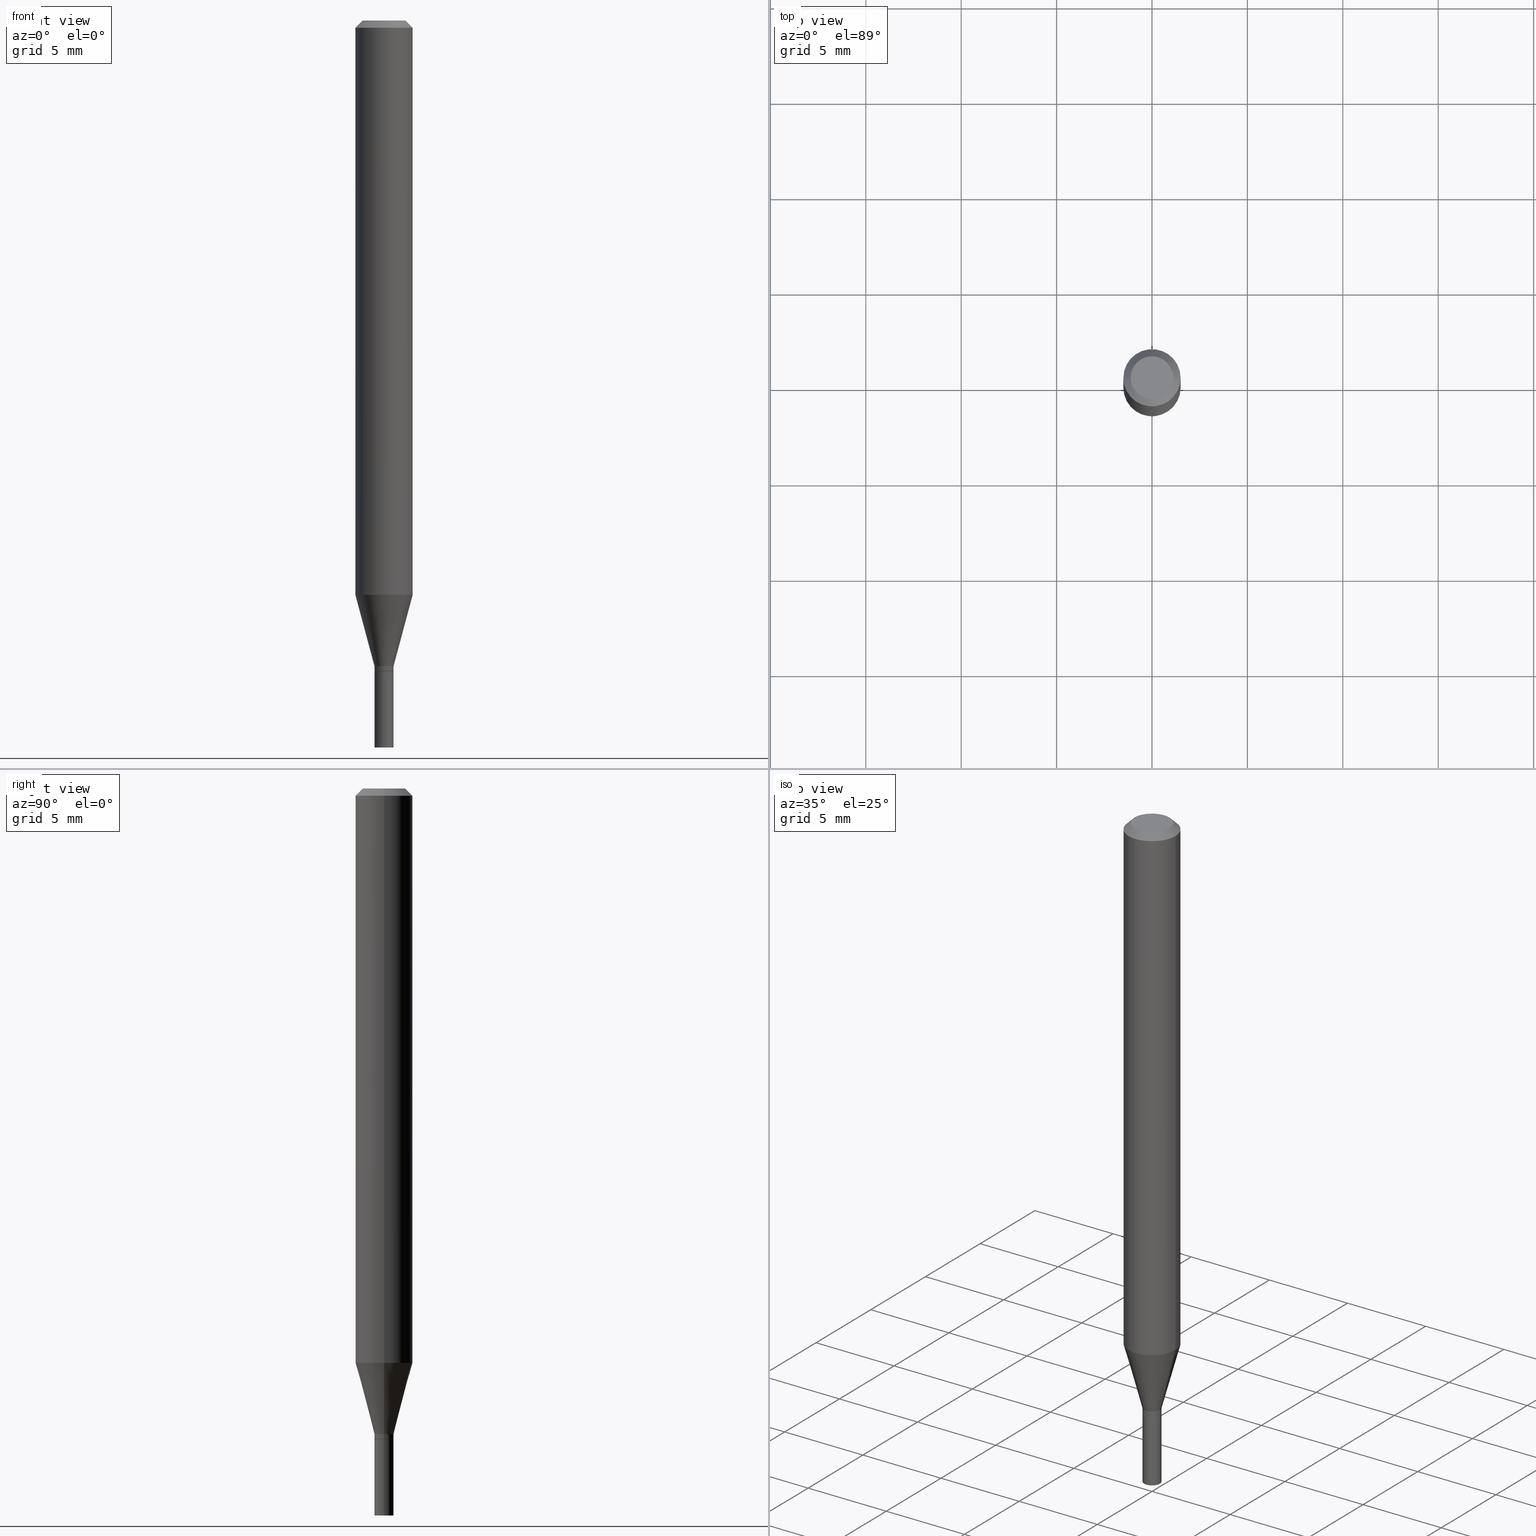
[diagram: canonical four-view strip — front | top / right | iso, engineering-drawing reading convention]
A machine part, canonical four-view strip (front | top / right | iso — engineering-drawing reading convention). The complete STEP part file that produces these views, byte-faithful:
ISO-10303-21;
HEADER;
FILE_DESCRIPTION (( 'STEP AP203' ),
    '1' );
FILE_NAME ('40305.STEP',
    '2024-03-12T19:10:31',
    ( '' ),
    ( '' ),
    'SwSTEP 2.0',
    'SolidWorks 2023',
    '' );
FILE_SCHEMA (( 'CONFIG_CONTROL_DESIGN' ));
ENDSEC;

DATA;
#1 = DIRECTION ( 'NONE',  ( -2.445468806185136597E-29, 3.491481338843145583E-15, 1.000000000000000000 ) ) ;
#2 = EDGE_CURVE ( 'NONE', #242, #251, #90, .T. ) ;
#3 = CARTESIAN_POINT ( 'NONE',  ( 3.257364449838602072E-29, -4.650653143339069312E-15, -1.331999999999999851 ) ) ;
#4 = CYLINDRICAL_SURFACE ( 'NONE', #217, 0.01969999999999990856 ) ;
#5 = LINE ( 'NONE', #264, #392 ) ;
#6 = CARTESIAN_POINT ( 'NONE',  ( 1.375643647504522233E-16, 0.01969999999999531154, -1.342500000000000249 ) ) ;
#7 = DIRECTION ( 'NONE',  ( 1.000000000000000000, -6.982962677686258033E-15, 0.000000000000000000 ) ) ;
#8 = CARTESIAN_POINT ( 'NONE',  ( -0.01919999999999999485, -4.548240264956872853E-15, -1.342500000000000249 ) ) ;
#9 = DIRECTION ( 'NONE',  ( 1.000000000000000000, -6.982962677686270655E-15, 0.000000000000000000 ) ) ;
#10 = CIRCLE ( 'NONE', #187, 0.01969999999999991896 ) ;
#11 = CIRCLE ( 'NONE', #79, 0.01969999999999989468 ) ;
#12 = DIRECTION ( 'NONE',  ( -2.445468806185136597E-29, 3.491481338843145583E-15, 1.000000000000000000 ) ) ;
#13 = DIRECTION ( 'NONE',  ( -1.000000000000000000, 6.982962677686266711E-15, 0.000000000000000000 ) ) ;
#14 = ORIENTED_EDGE ( 'NONE', *, *, #230, .F. ) ;
#15 = ORIENTED_EDGE ( 'NONE', *, *, #342, .F. ) ;
#16 = EDGE_CURVE ( 'NONE', #183, #369, #262, .T. ) ;
#17 = ORIENTED_EDGE ( 'NONE', *, *, #77, .F. ) ;
#18 = DIRECTION ( 'NONE',  ( 1.000000000000000000, -6.982962677686265922E-15, 4.876176775795935793E-29 ) ) ;
#19 = CIRCLE ( 'NONE', #233, 0.05905000000000001914 ) ;
#20 = ORIENTED_EDGE ( 'NONE', *, *, #45, .T. ) ;
#21 = LOCAL_TIME ( 15, 10, 31.00000000000000000, #247 ) ;
#22 = DATE_AND_TIME ( #310, #21 ) ;
#23 = APPROVAL_STATUS ( 'not_yet_approved' ) ;
#24 = DIRECTION ( 'NONE',  ( -2.445468806185136597E-29, 3.491481338843145583E-15, 1.000000000000000000 ) ) ;
#25 = ADVANCED_FACE ( 'NONE', ( #84 ), #105, .T. ) ;
#26 = CARTESIAN_POINT ( 'NONE',  ( 0.05905000000000001914, -4.550251410184451334E-15, -1.185143800722164409 ) ) ;
#27 = ADVANCED_FACE ( 'NONE', ( #236 ), #386, .F. ) ;
#28 = AXIS2_PLACEMENT_3D ( 'NONE', #156, #300, #41 ) ;
#29 = SECURITY_CLASSIFICATION_LEVEL ( 'unclassified' ) ;
#30 = EDGE_LOOP ( 'NONE', ( #413, #68 ) ) ;
#31 = EDGE_LOOP ( 'NONE', ( #176, #441, #430, #437 ) ) ;
#32 = PERSON_AND_ORGANIZATION ( #361, #163 ) ;
#33 = ADVANCED_FACE ( 'NONE', ( #177 ), #317, .T. ) ;
#34 = EDGE_CURVE ( 'NONE', #223, #366, #446, .T. ) ;
#35 = AXIS2_PLACEMENT_3D ( 'NONE', #320, #103, #368 ) ;
#36 = CC_DESIGN_PERSON_AND_ORGANIZATION_ASSIGNMENT ( #32, #237, ( #246 ) ) ;
#37 = CARTESIAN_POINT ( 'NONE',  ( 0.000000000000000000, 0.000000000000000000, 0.000000000000000000 ) ) ;
#38 = FACE_OUTER_BOUND ( 'NONE', #348, .T. ) ;
#39 = DIRECTION ( 'NONE',  ( -2.445468806185136597E-29, 3.491481338843145583E-15, 1.000000000000000000 ) ) ;
#40 = CARTESIAN_POINT ( 'NONE',  ( 3.281819137900453618E-29, -4.685567956727501750E-15, -1.342000000000000304 ) ) ;
#41 = DIRECTION ( 'NONE',  ( 1.000000000000000000, -6.982962677686253300E-15, 0.000000000000000000 ) ) ;
#42 = EDGE_CURVE ( 'NONE', #395, #195, #370, .T. ) ;
#43 = AXIS2_PLACEMENT_3D ( 'NONE', #81, #338, #331 ) ;
#44 = VERTEX_POINT ( 'NONE', #328 ) ;
#45 = EDGE_CURVE ( 'NONE', #455, #326, #5, .T. ) ;
#46 = LENGTH_MEASURE_WITH_UNIT ( LENGTH_MEASURE( 0.02539999999999999897 ), #302 );
#47 = ORIENTED_EDGE ( 'NONE', *, *, #2, .T. ) ;
#48 = PRODUCT_DEFINITION_SHAPE ( 'NONE', 'NONE',  #443 ) ;
#49 = DIRECTION ( 'NONE',  ( -2.445468806185136597E-29, 3.491481338843145583E-15, 1.000000000000000000 ) ) ;
#50 = CLOSED_SHELL ( 'NONE', ( #25, #279, #33, #254, #142, #52, #305, #167, #451, #281, #257, #464 ) ) ;
#51 = CIRCLE ( 'NONE', #115, 0.05905000000000001914 ) ;
#52 = ADVANCED_FACE ( 'NONE', ( #259 ), #445, .T. ) ;
#53 = FACE_OUTER_BOUND ( 'NONE', #54, .T. ) ;
#54 = EDGE_LOOP ( 'NONE', ( #101, #88, #466, #450 ) ) ;
#55 = DIRECTION ( 'NONE',  ( -1.000000000000000000, 6.982962677686265922E-15, -4.876176775795935793E-29 ) ) ;
#56 = CARTESIAN_POINT ( 'NONE',  ( 0.000000000000000000, 0.000000000000000000, 0.000000000000000000 ) ) ;
#57 = SHAPE_DEFINITION_REPRESENTATION ( #48, #82 ) ;
#58 = PLANE ( 'NONE',  #240 ) ;
#59 = CARTESIAN_POINT ( 'NONE',  ( 3.283041872303546419E-29, -4.687313697396923253E-15, -1.342500000000000249 ) ) ;
#60 = VECTOR ( 'NONE', #408, 39.37007874015748854 ) ;
#61 = VECTOR ( 'NONE', #435, 39.37007874015748143 ) ;
#62 = APPLICATION_PROTOCOL_DEFINITION ( 'international standard', 'config_control_design', 1994, #224 ) ;
#63 = VERTEX_POINT ( 'NONE', #8 ) ;
#64 = EDGE_CURVE ( 'NONE', #251, #183, #150, .T. ) ;
#65 = EDGE_LOOP ( 'NONE', ( #301, #298 ) ) ;
#66 = PRODUCT_RELATED_PRODUCT_CATEGORY ( 'detail', '', ( #246 ) ) ;
#67 = DIRECTION ( 'NONE',  ( -2.445468806185136597E-29, 3.491481338843145583E-15, 1.000000000000000000 ) ) ;
#68 = ORIENTED_EDGE ( 'NONE', *, *, #380, .T. ) ;
#69 =( CONVERSION_BASED_UNIT ( 'INCH', #46 ) LENGTH_UNIT ( ) NAMED_UNIT ( #365 ) );
#70 = DIRECTION ( 'NONE',  ( -2.445468806185136597E-29, 3.491481338843145583E-15, 1.000000000000000000 ) ) ;
#71 = PERSON_AND_ORGANIZATION_ROLE ( 'design_supplier' ) ;
#72 = ORIENTED_EDGE ( 'NONE', *, *, #135, .F. ) ;
#73 = AXIS2_PLACEMENT_3D ( 'NONE', #203, #431, #98 ) ;
#74 = CARTESIAN_POINT ( 'NONE',  ( 0.01969999999999999876, -1.375643647504194363E-16, 9.606068248317991466E-31 ) ) ;
#75 = DIRECTION ( 'NONE',  ( -0.7071067811865396902, 2.468850131082174625E-15, -0.7071067811865553443 ) ) ;
#76 = CARTESIAN_POINT ( 'NONE',  ( 2.898232195509746702E-29, -4.137907464067076414E-15, -1.185143800722164409 ) ) ;
#77 = EDGE_CURVE ( 'NONE', #63, #251, #340, .T. ) ;
#78 = VERTEX_POINT ( 'NONE', #26 ) ;
#79 = AXIS2_PLACEMENT_3D ( 'NONE', #3, #409, #85 ) ;
#80 = CARTESIAN_POINT ( 'NONE',  ( 3.257364449838602072E-29, -4.650653143339069312E-15, -1.331999999999999851 ) ) ;
#81 = CARTESIAN_POINT ( 'NONE',  ( -8.641182519006289553E-45, 1.233731848647591164E-30, 3.533548453838711334E-16 ) ) ;
#82 = ADVANCED_BREP_SHAPE_REPRESENTATION ( '40305', ( #360, #347, #210 ), #418 ) ;
#83 = CARTESIAN_POINT ( 'NONE',  ( 0.01969999999999989468, -4.788217508089488526E-15, -1.331999999999999851 ) ) ;
#84 = FACE_OUTER_BOUND ( 'NONE', #229, .T. ) ;
#85 = DIRECTION ( 'NONE',  ( 1.000000000000000000, -6.982962677686266711E-15, 0.000000000000000000 ) ) ;
#86 = EDGE_CURVE ( 'NONE', #251, #242, #10, .T. ) ;
#87 = PRODUCT_DEFINITION_FORMATION_WITH_SPECIFIED_SOURCE ( 'ANY', '', #246, .NOT_KNOWN. ) ;
#88 = ORIENTED_EDGE ( 'NONE', *, *, #77, .T. ) ;
#89 = ORIENTED_EDGE ( 'NONE', *, *, #131, .F. ) ;
#90 = CIRCLE ( 'NONE', #227, 0.01969999999999991896 ) ;
#91 = CARTESIAN_POINT ( 'NONE',  ( 3.668203209277704895E-29, -5.237222008264718177E-15, -1.500000000000000222 ) ) ;
#92 = DATE_AND_TIME ( #460, #330 ) ;
#93 = ORIENTED_EDGE ( 'NONE', *, *, #86, .T. ) ;
#94 =( NAMED_UNIT ( * ) SI_UNIT ( $, .STERADIAN. ) SOLID_ANGLE_UNIT ( ) );
#95 = AXIS2_PLACEMENT_3D ( 'NONE', #76, #181, #9 ) ;
#96 = APPROVAL_ROLE ( '' ) ;
#97 = DIRECTION ( 'NONE',  ( 1.000000000000000000, -6.982962677686266711E-15, 4.876176775795935793E-29 ) ) ;
#98 = DIRECTION ( 'NONE',  ( 1.000000000000000000, -6.982962677686278543E-15, 0.000000000000000000 ) ) ;
#99 = PERSON_AND_ORGANIZATION ( #361, #163 ) ;
#100 = DIRECTION ( 'NONE',  ( 1.000000000000000000, -6.982962677686278543E-15, 0.000000000000000000 ) ) ;
#101 = ORIENTED_EDGE ( 'NONE', *, *, #154, .T. ) ;
#102 = DIRECTION ( 'NONE',  ( -2.438088387897960049E-29, 3.491481338843145188E-15, 1.000000000000000000 ) ) ;
#103 = DIRECTION ( 'NONE',  ( -2.445468806185136597E-29, 3.491481338843145583E-15, 1.000000000000000000 ) ) ;
#104 = EDGE_CURVE ( 'NONE', #424, #242, #204, .T. ) ;
#105 = CYLINDRICAL_SURFACE ( 'NONE', #191, 0.01969999999999990856 ) ;
#106 = DIRECTION ( 'NONE',  ( 1.000000000000000000, -6.982962677686278543E-15, 0.000000000000000000 ) ) ;
#107 = CONICAL_SURFACE ( 'NONE', #153, 0.01919999999999999485, 0.7853981633974739252 ) ;
#108 = ORIENTED_EDGE ( 'NONE', *, *, #123, .F. ) ;
#109 = CC_DESIGN_DATE_AND_TIME_ASSIGNMENT ( #143, #390, ( #308 ) ) ;
#110 = CARTESIAN_POINT ( 'NONE',  ( 3.668203209277705088E-31, -5.237222008264718399E-17, -0.01499999999999999944 ) ) ;
#111 = DIRECTION ( 'NONE',  ( -2.445468806185136597E-29, 3.491481338843145583E-15, 1.000000000000000000 ) ) ;
#112 = EDGE_CURVE ( 'NONE', #78, #369, #19, .T. ) ;
#113 = CARTESIAN_POINT ( 'NONE',  ( 3.257364449838602072E-29, -4.650653143339069312E-15, -1.331999999999999851 ) ) ;
#114 = ORIENTED_EDGE ( 'NONE', *, *, #64, .F. ) ;
#115 = AXIS2_PLACEMENT_3D ( 'NONE', #357, #314, #253 ) ;
#116 = APPROVAL_PERSON_ORGANIZATION ( #432, #343, #96 ) ;
#117 = CARTESIAN_POINT ( 'NONE',  ( -0.05905000000000001914, 3.599717260347269535E-16, -0.01499999999999999944 ) ) ;
#118 = PLANE ( 'NONE',  #179 ) ;
#119 = DIRECTION ( 'NONE',  ( 1.000000000000000000, -6.982962677686265922E-15, 4.819687581474398999E-29 ) ) ;
#120 = ORIENTED_EDGE ( 'NONE', *, *, #123, .T. ) ;
#121 = AXIS2_PLACEMENT_3D ( 'NONE', #349, #425, #18 ) ;
#122 = AXIS2_PLACEMENT_3D ( 'NONE', #141, #102, #211 ) ;
#123 = EDGE_CURVE ( 'NONE', #44, #183, #11, .T. ) ;
#124 = ORIENTED_EDGE ( 'NONE', *, *, #226, .F. ) ;
#125 = EDGE_LOOP ( 'NONE', ( #325, #238, #190, #172 ) ) ;
#126 = DIRECTION ( 'NONE',  ( -2.445468806185136597E-29, 3.491481338843145583E-15, 1.000000000000000000 ) ) ;
#127 = EDGE_CURVE ( 'NONE', #63, #424, #188, .T. ) ;
#128 = CONICAL_SURFACE ( 'NONE', #28, 0.01919999999999999485, 0.7853981633974739252 ) ;
#129 = CARTESIAN_POINT ( 'NONE',  ( 0.000000000000000000, 0.000000000000000000, 0.000000000000000000 ) ) ;
#130 = DIRECTION ( 'NONE',  ( -2.445468806185136597E-29, 3.491481338843145583E-15, 1.000000000000000000 ) ) ;
#131 = EDGE_CURVE ( 'NONE', #183, #44, #269, .T. ) ;
#132 = DATE_AND_TIME ( #282, #201 ) ;
#133 = DIRECTION ( 'NONE',  ( 1.000000000000000000, -6.982962677686266711E-15, 4.876176775795935793E-29 ) ) ;
#134 = CARTESIAN_POINT ( 'NONE',  ( -0.01969999999999999876, -4.822290933886080617E-15, -1.342500000000000249 ) ) ;
#135 = EDGE_CURVE ( 'NONE', #414, #366, #457, .T. ) ;
#136 = DIRECTION ( 'NONE',  ( -2.445468806185136597E-29, 3.491481338843145583E-15, 1.000000000000000000 ) ) ;
#137 = CALENDAR_DATE ( 2024, 12, 3 ) ;
#138 = AXIS2_PLACEMENT_3D ( 'NONE', #113, #1, #139 ) ;
#139 = DIRECTION ( 'NONE',  ( 1.000000000000000000, -6.982962677686266711E-15, 0.000000000000000000 ) ) ;
#140 = ORIENTED_EDGE ( 'NONE', *, *, #226, .T. ) ;
#141 = CARTESIAN_POINT ( 'NONE',  ( 3.283041872303546419E-29, -4.687313697396923253E-15, -1.342500000000000249 ) ) ;
#142 = ADVANCED_FACE ( 'NONE', ( #160 ), #146, .T. ) ;
#143 = DATE_AND_TIME ( #137, #384 ) ;
#144 = CLOSED_SHELL ( 'NONE', ( #225, #27, #398, #448 ) ) ;
#145 = DIRECTION ( 'NONE',  ( -2.445468806185136597E-29, 3.491481338843145583E-15, 1.000000000000000000 ) ) ;
#146 = CONICAL_SURFACE ( 'NONE', #252, 0.01969999999999989468, 0.2617993877991499074 ) ;
#147 = DIRECTION ( 'NONE',  ( 2.438088387897960049E-29, -3.491481338843145188E-15, -1.000000000000000000 ) ) ;
#148 = DIRECTION ( 'NONE',  ( 0.2588190451025211836, 1.565188264969622559E-15, 0.9659258262890679791 ) ) ;
#149 = EDGE_LOOP ( 'NONE', ( #174, #454, #140, #270 ) ) ;
#150 = LINE ( 'NONE', #295, #170 ) ;
#151 = CARTESIAN_POINT ( 'NONE',  ( -8.641182519006289553E-45, 1.233731848647591164E-30, 3.533548453838711334E-16 ) ) ;
#152 = CARTESIAN_POINT ( 'NONE',  ( 0.01969999999999991896, -4.823132321477920964E-15, -1.342000000000000304 ) ) ;
#153 = AXIS2_PLACEMENT_3D ( 'NONE', #59, #263, #234 ) ;
#154 = EDGE_CURVE ( 'NONE', #424, #63, #272, .T. ) ;
#155 = CARTESIAN_POINT ( 'NONE',  ( -0.05905000000000001914, 4.195754854663392958E-16, -2.904631170795522943E-30 ) ) ;
#156 = CARTESIAN_POINT ( 'NONE',  ( 3.283041872303546419E-29, -4.687313697396923253E-15, -1.342500000000000249 ) ) ;
#157 = ORIENTED_EDGE ( 'NONE', *, *, #86, .F. ) ;
#158 = AXIS2_PLACEMENT_3D ( 'NONE', #463, #24, #100 ) ;
#159 = CC_DESIGN_PERSON_AND_ORGANIZATION_ASSIGNMENT ( #396, #71, ( #87 ) ) ;
#160 = FACE_OUTER_BOUND ( 'NONE', #275, .T. ) ;
#161 = DIRECTION ( 'NONE',  ( 1.000000000000000000, -6.982962677686266711E-15, 4.876176775795935793E-29 ) ) ;
#162 = ORIENTED_EDGE ( 'NONE', *, *, #64, .T. ) ;
#163 = ORGANIZATION ( 'UNSPECIFIED', 'UNSPECIFIED', '' ) ;
#164 = COORDINATED_UNIVERSAL_TIME_OFFSET ( 5, 0, .BEHIND. ) ;
#165 = CARTESIAN_POINT ( 'NONE',  ( 0.01969999999999999876, -5.374786373015138180E-15, -1.500000000000000222 ) ) ;
#166 = APPROVAL_DATE_TIME ( #355, #343 ) ;
#167 = ADVANCED_FACE ( 'NONE', ( #374 ), #465, .T. ) ;
#168 = CYLINDRICAL_SURFACE ( 'NONE', #383, 0.05905000000000001914 ) ;
#169 = PERSON_AND_ORGANIZATION_ROLE ( 'creator' ) ;
#170 = VECTOR ( 'NONE', #376, 39.37007874015748143 ) ;
#171 = AXIS2_PLACEMENT_3D ( 'NONE', #110, #67, #319 ) ;
#172 = ORIENTED_EDGE ( 'NONE', *, *, #342, .T. ) ;
#173 = APPROVAL_ROLE ( '' ) ;
#174 = ORIENTED_EDGE ( 'NONE', *, *, #16, .F. ) ;
#175 = CARTESIAN_POINT ( 'NONE',  ( 0.01919999999999999485, -4.821386580808499461E-15, -1.342500000000000249 ) ) ;
#176 = ORIENTED_EDGE ( 'NONE', *, *, #34, .F. ) ;
#177 = FACE_OUTER_BOUND ( 'NONE', #394, .T. ) ;
#178 = AXIS2_PLACEMENT_3D ( 'NONE', #288, #439, #184 ) ;
#179 = AXIS2_PLACEMENT_3D ( 'NONE', #6, #147, #371 ) ;
#180 = DIRECTION ( 'NONE',  ( 0.7071067811865396902, -7.319954787623229224E-15, -0.7071067811865553443 ) ) ;
#181 = DIRECTION ( 'NONE',  ( -2.445468806185136597E-29, 3.491481338843145583E-15, 1.000000000000000000 ) ) ;
#182 = CARTESIAN_POINT ( 'NONE',  ( 0.000000000000000000, 0.000000000000000000, 0.000000000000000000 ) ) ;
#183 = VERTEX_POINT ( 'NONE', #221 ) ;
#184 = DIRECTION ( 'NONE',  ( -1.000000000000000000, 6.982962677686266711E-15, 0.000000000000000000 ) ) ;
#185 = CARTESIAN_POINT ( 'NONE',  ( -0.01969999999999989468, -4.510676224394330003E-15, -1.331999999999999851 ) ) ;
#186 = FACE_OUTER_BOUND ( 'NONE', #363, .T. ) ;
#187 = AXIS2_PLACEMENT_3D ( 'NONE', #400, #215, #7 ) ;
#188 = CIRCLE ( 'NONE', #379, 0.01919999999999999485 ) ;
#189 = DIRECTION ( 'NONE',  ( 1.000000000000000000, -6.982962677686253300E-15, 0.000000000000000000 ) ) ;
#190 = ORIENTED_EDGE ( 'NONE', *, *, #42, .T. ) ;
#191 = AXIS2_PLACEMENT_3D ( 'NONE', #375, #126, #133 ) ;
#192 = VECTOR ( 'NONE', #148, 39.37007874015748854 ) ;
#193 = EDGE_CURVE ( 'NONE', #395, #455, #438, .T. ) ;
#194 = ORIENTED_EDGE ( 'NONE', *, *, #193, .T. ) ;
#195 = VERTEX_POINT ( 'NONE', #378 ) ;
#196 = EDGE_CURVE ( 'NONE', #455, #395, #412, .T. ) ;
#197 = ORIENTED_EDGE ( 'NONE', *, *, #196, .F. ) ;
#198 = DIRECTION ( 'NONE',  ( 1.000000000000000000, -6.982962677686278543E-15, 0.000000000000000000 ) ) ;
#199 = ORIENTED_EDGE ( 'NONE', *, *, #196, .T. ) ;
#200 = CIRCLE ( 'NONE', #228, 0.01969999999999999876 ) ;
#201 = LOCAL_TIME ( 15, 10, 31.00000000000000000, #315 ) ;
#202 = DATE_TIME_ROLE ( 'creation_date' ) ;
#203 = CARTESIAN_POINT ( 'NONE',  ( 3.283041872303546419E-29, -4.687313697396923253E-15, -1.342500000000000249 ) ) ;
#204 = LINE ( 'NONE', #175, #271 ) ;
#205 = COORDINATED_UNIVERSAL_TIME_OFFSET ( 5, 0, .BEHIND. ) ;
#206 = AXIS2_PLACEMENT_3D ( 'NONE', #80, #220, #335 ) ;
#207 = LINE ( 'NONE', #74, #372 ) ;
#208 = ORIENTED_EDGE ( 'NONE', *, *, #209, .F. ) ;
#209 = EDGE_CURVE ( 'NONE', #369, #195, #410, .T. ) ;
#210 = AXIS2_PLACEMENT_3D ( 'NONE', #397, #393, #244 ) ;
#211 = DIRECTION ( 'NONE',  ( 1.000000000000000000, -6.982962677686265922E-15, 4.876176775795935793E-29 ) ) ;
#212 = PERSON_AND_ORGANIZATION ( #361, #163 ) ;
#213 = ORIENTED_EDGE ( 'NONE', *, *, #456, .T. ) ;
#214 = EDGE_CURVE ( 'NONE', #369, #78, #341, .T. ) ;
#215 = DIRECTION ( 'NONE',  ( -2.445468806185136597E-29, 3.491481338843145583E-15, 1.000000000000000000 ) ) ;
#216 = CARTESIAN_POINT ( 'NONE',  ( -0.01969999999999999876, 1.399769189447397278E-16, -9.690302127802162501E-31 ) ) ;
#217 = AXIS2_PLACEMENT_3D ( 'NONE', #321, #49, #161 ) ;
#218 = DIRECTION ( 'NONE',  ( 1.000000000000000000, -6.982962677686265922E-15, 4.876176775795935232E-29 ) ) ;
#219 = ORIENTED_EDGE ( 'NONE', *, *, #127, .T. ) ;
#220 = DIRECTION ( 'NONE',  ( -2.445468806185136597E-29, 3.491481338843145583E-15, 1.000000000000000000 ) ) ;
#221 = CARTESIAN_POINT ( 'NONE',  ( -0.01969999999999989468, -4.114504101497534251E-15, -1.331999999999999851 ) ) ;
#222 = CARTESIAN_POINT ( 'NONE',  ( 0.05905000000000001914, -4.123439461173741806E-16, 2.879382386107500921E-30 ) ) ;
#223 = VERTEX_POINT ( 'NONE', #296 ) ;
#224 = APPLICATION_CONTEXT ( 'configuration controlled 3d designs of mechanical parts and assemblies' ) ;
#225 = ADVANCED_FACE ( 'NONE', ( #38 ), #258, .T. ) ;
#226 = EDGE_CURVE ( 'NONE', #44, #78, #261, .T. ) ;
#227 = AXIS2_PLACEMENT_3D ( 'NONE', #40, #334, #294 ) ;
#228 = AXIS2_PLACEMENT_3D ( 'NONE', #402, #70, #106 ) ;
#229 = EDGE_LOOP ( 'NONE', ( #47, #162, #108, #411 ) ) ;
#230 = EDGE_CURVE ( 'NONE', #78, #326, #333, .T. ) ;
#231 = CARTESIAN_POINT ( 'NONE',  ( 0.01969999999999999876, -4.824878062147343257E-15, -1.342500000000000249 ) ) ;
#232 = VECTOR ( 'NONE', #416, 39.37007874015748143 ) ;
#233 = AXIS2_PLACEMENT_3D ( 'NONE', #324, #284, #241 ) ;
#234 = DIRECTION ( 'NONE',  ( 1.000000000000000000, -6.982962677686253300E-15, 0.000000000000000000 ) ) ;
#235 = EDGE_LOOP ( 'NONE', ( #350, #434, #420, #14 ) ) ;
#236 = FACE_OUTER_BOUND ( 'NONE', #65, .T. ) ;
#237 = PERSON_AND_ORGANIZATION_ROLE ( 'design_owner' ) ;
#238 = ORIENTED_EDGE ( 'NONE', *, *, #193, .F. ) ;
#239 =( NAMED_UNIT ( * ) PLANE_ANGLE_UNIT ( ) SI_UNIT ( $, .RADIAN. ) );
#240 = AXIS2_PLACEMENT_3D ( 'NONE', #389, #286, #55 ) ;
#241 = DIRECTION ( 'NONE',  ( 1.000000000000000000, -6.982962677686270655E-15, 0.000000000000000000 ) ) ;
#242 = VERTEX_POINT ( 'NONE', #152 ) ;
#243 = CC_DESIGN_APPROVAL ( #343, ( #87 ) ) ;
#244 = DIRECTION ( 'NONE',  ( 1.000000000000000000, 0.000000000000000000, 0.000000000000000000 ) ) ;
#245 = ORIENTED_EDGE ( 'NONE', *, *, #127, .F. ) ;
#246 = PRODUCT ( '40305', '40305', '', ( #322 ) ) ;
#247 = COORDINATED_UNIVERSAL_TIME_OFFSET ( 5, 0, .BEHIND. ) ;
#248 = CARTESIAN_POINT ( 'NONE',  ( -0.04404999999999999888, 3.337856159934041534E-16, 3.533548453838689148E-16 ) ) ;
#249 = CC_DESIGN_PERSON_AND_ORGANIZATION_ASSIGNMENT ( #99, #250, ( #87 ) ) ;
#250 = PERSON_AND_ORGANIZATION_ROLE ( 'creator' ) ;
#251 = VERTEX_POINT ( 'NONE', #404 ) ;
#252 = AXIS2_PLACEMENT_3D ( 'NONE', #304, #145, #403 ) ;
#253 = DIRECTION ( 'NONE',  ( 1.000000000000000000, -6.982962677686266711E-15, 0.000000000000000000 ) ) ;
#254 = ADVANCED_FACE ( 'NONE', ( #293 ), #291, .T. ) ;
#255 = DIRECTION ( 'NONE',  ( -2.445468806185136877E-29, 3.491481338843145188E-15, 1.000000000000000000 ) ) ;
#256 = ORIENTED_EDGE ( 'NONE', *, *, #104, .T. ) ;
#257 = ADVANCED_FACE ( 'NONE', ( #391 ), #107, .T. ) ;
#258 = CYLINDRICAL_SURFACE ( 'NONE', #307, 0.01969999999999999876 ) ;
#259 = FACE_OUTER_BOUND ( 'NONE', #149, .T. ) ;
#260 = AXIS2_PLACEMENT_3D ( 'NONE', #37, #39, #421 ) ;
#261 = LINE ( 'NONE', #83, #192 ) ;
#262 = LINE ( 'NONE', #185, #60 ) ;
#263 = DIRECTION ( 'NONE',  ( -2.445468806185136597E-29, 3.491481338843145583E-15, 1.000000000000000000 ) ) ;
#264 = CARTESIAN_POINT ( 'NONE',  ( 0.05905000000000001914, -4.574846268510562433E-16, -0.01499999999999999944 ) ) ;
#265 = CC_DESIGN_PERSON_AND_ORGANIZATION_ASSIGNMENT ( #274, #351, ( #308 ) ) ;
#266 = FACE_OUTER_BOUND ( 'NONE', #30, .T. ) ;
#267 = DIRECTION ( 'NONE',  ( 2.445468806185136597E-29, -3.491481338843145583E-15, -1.000000000000000000 ) ) ;
#268 = ORIENTED_EDGE ( 'NONE', *, *, #214, .T. ) ;
#269 = CIRCLE ( 'NONE', #138, 0.01969999999999989468 ) ;
#270 = ORIENTED_EDGE ( 'NONE', *, *, #214, .F. ) ;
#271 = VECTOR ( 'NONE', #367, 39.37007874015748143 ) ;
#272 = CIRCLE ( 'NONE', #35, 0.01919999999999999485 ) ;
#273 = LOCAL_TIME ( 15, 10, 31.00000000000000000, #205 ) ;
#274 = PERSON_AND_ORGANIZATION ( #361, #163 ) ;
#275 = EDGE_LOOP ( 'NONE', ( #120, #327, #359, #124 ) ) ;
#276 = CARTESIAN_POINT ( 'NONE',  ( -0.05905000000000001914, -3.718331978600737710E-15, -1.185143800722164409 ) ) ;
#277 = APPROVAL_STATUS ( 'not_yet_approved' ) ;
#278 = EDGE_LOOP ( 'NONE', ( #387, #245 ) ) ;
#279 = ADVANCED_FACE ( 'NONE', ( #53 ), #128, .T. ) ;
#280 = ORIENTED_EDGE ( 'NONE', *, *, #323, .T. ) ;
#281 = ADVANCED_FACE ( 'NONE', ( #381 ), #313, .F. ) ;
#282 = CALENDAR_DATE ( 2024, 12, 3 ) ;
#283 = EDGE_CURVE ( 'NONE', #223, #422, #200, .T. ) ;
#284 = DIRECTION ( 'NONE',  ( -2.445468806185136597E-29, 3.491481338843145583E-15, 1.000000000000000000 ) ) ;
#285 = EDGE_LOOP ( 'NONE', ( #17, #219, #256, #157 ) ) ;
#286 = DIRECTION ( 'NONE',  ( 2.438088387897960049E-29, -3.491481338843145188E-15, -1.000000000000000000 ) ) ;
#287 = PERSON_AND_ORGANIZATION ( #361, #163 ) ;
#288 = CARTESIAN_POINT ( 'NONE',  ( 3.668203209277705088E-31, -5.237222008264718399E-17, -0.01499999999999999944 ) ) ;
#289 = ORIENTED_EDGE ( 'NONE', *, *, #332, .F. ) ;
#290 = DIRECTION ( 'NONE',  ( -2.445468806185136877E-29, 3.491481338843145188E-15, 1.000000000000000000 ) ) ;
#291 = CYLINDRICAL_SURFACE ( 'NONE', #260, 0.05905000000000001914 ) ;
#292 = UNCERTAINTY_MEASURE_WITH_UNIT (LENGTH_MEASURE( 1.000000000000000082E-05 ), #69, 'distance_accuracy_value', 'NONE');
#293 = FACE_OUTER_BOUND ( 'NONE', #235, .T. ) ;
#294 = DIRECTION ( 'NONE',  ( 1.000000000000000000, -6.982962677686258033E-15, 0.000000000000000000 ) ) ;
#295 = CARTESIAN_POINT ( 'NONE',  ( -0.01969999999999990856, 1.399769189447390869E-16, -9.690302127802118711E-31 ) ) ;
#296 = CARTESIAN_POINT ( 'NONE',  ( -0.01969999999999999876, -4.822290933886080617E-15, -1.500000000000000222 ) ) ;
#297 = AXIS2_PLACEMENT_3D ( 'NONE', #91, #130, #198 ) ;
#298 = ORIENTED_EDGE ( 'NONE', *, *, #283, .F. ) ;
#299 = CARTESIAN_POINT ( 'NONE',  ( 3.283041872303546419E-29, -4.687313697396923253E-15, -1.342500000000000249 ) ) ;
#300 = DIRECTION ( 'NONE',  ( -2.445468806185136597E-29, 3.491481338843145583E-15, 1.000000000000000000 ) ) ;
#301 = ORIENTED_EDGE ( 'NONE', *, *, #456, .F. ) ;
#302 =( LENGTH_UNIT ( ) NAMED_UNIT ( * ) SI_UNIT ( $, .METRE. ) );
#303 = EDGE_CURVE ( 'NONE', #326, #195, #51, .T. ) ;
#304 = CARTESIAN_POINT ( 'NONE',  ( 3.257364449838602072E-29, -4.650653143339069312E-15, -1.331999999999999851 ) ) ;
#305 = ADVANCED_FACE ( 'NONE', ( #186 ), #168, .T. ) ;
#306 = FACE_OUTER_BOUND ( 'NONE', #440, .T. ) ;
#307 = AXIS2_PLACEMENT_3D ( 'NONE', #182, #111, #218 ) ;
#308 = SECURITY_CLASSIFICATION ( '', '', #29 ) ;
#309 = FACE_OUTER_BOUND ( 'NONE', #433, .T. ) ;
#310 = CALENDAR_DATE ( 2024, 12, 3 ) ;
#311 = APPLICATION_CONTEXT ( 'configuration controlled 3d designs of mechanical parts and assemblies' ) ;
#312 = APPROVAL_DATE_TIME ( #92, #356 ) ;
#313 = PLANE ( 'NONE',  #122 ) ;
#314 = DIRECTION ( 'NONE',  ( -2.445468806185136597E-29, 3.491481338843145583E-15, 1.000000000000000000 ) ) ;
#315 = COORDINATED_UNIVERSAL_TIME_OFFSET ( 5, 0, .BEHIND. ) ;
#316 = ORIENTED_EDGE ( 'NONE', *, *, #42, .F. ) ;
#317 = CONICAL_SURFACE ( 'NONE', #178, 0.05905000000000001914, 0.7853981633974372878 ) ;
#318 = CC_DESIGN_APPROVAL ( #356, ( #308 ) ) ;
#319 = DIRECTION ( 'NONE',  ( 1.000000000000000000, -6.982962677686266711E-15, 0.000000000000000000 ) ) ;
#320 = CARTESIAN_POINT ( 'NONE',  ( 3.283041872303546419E-29, -4.687313697396923253E-15, -1.342500000000000249 ) ) ;
#321 = CARTESIAN_POINT ( 'NONE',  ( 0.000000000000000000, 0.000000000000000000, 0.000000000000000000 ) ) ;
#322 = MECHANICAL_CONTEXT ( 'NONE', #224, 'mechanical' ) ;
#323 = EDGE_CURVE ( 'NONE', #242, #44, #346, .T. ) ;
#324 = CARTESIAN_POINT ( 'NONE',  ( 2.898232195509746702E-29, -4.137907464067076414E-15, -1.185143800722164409 ) ) ;
#325 = ORIENTED_EDGE ( 'NONE', *, *, #45, .F. ) ;
#326 = VERTEX_POINT ( 'NONE', #377 ) ;
#327 = ORIENTED_EDGE ( 'NONE', *, *, #16, .T. ) ;
#328 = CARTESIAN_POINT ( 'NONE',  ( 0.01969999999999989468, -4.788217508089488526E-15, -1.331999999999999851 ) ) ;
#329 = CIRCLE ( 'NONE', #171, 0.05905000000000001914 ) ;
#330 = LOCAL_TIME ( 15, 10, 31.00000000000000000, #164 ) ;
#331 = DIRECTION ( 'NONE',  ( 1.000000000000000000, -6.982962677686265922E-15, 4.819687581474398999E-29 ) ) ;
#332 = EDGE_CURVE ( 'NONE', #422, #414, #207, .T. ) ;
#333 = LINE ( 'NONE', #222, #399 ) ;
#334 = DIRECTION ( 'NONE',  ( -2.445468806185136597E-29, 3.491481338843145583E-15, 1.000000000000000000 ) ) ;
#335 = DIRECTION ( 'NONE',  ( 1.000000000000000000, -6.982962677686266711E-15, 0.000000000000000000 ) ) ;
#336 = CARTESIAN_POINT ( 'NONE',  ( 0.01919999999999999485, -4.821386580808499461E-15, -1.342500000000000249 ) ) ;
#337 = CC_DESIGN_DATE_AND_TIME_ASSIGNMENT ( #132, #202, ( #443 ) ) ;
#338 = DIRECTION ( 'NONE',  ( -2.445468806185136597E-29, 3.491481338843145583E-15, 1.000000000000000000 ) ) ;
#339 = DIRECTION ( 'NONE',  ( -2.445468806185136877E-29, 3.491481338843145188E-15, 1.000000000000000000 ) ) ;
#340 = LINE ( 'NONE', #382, #232 ) ;
#341 = CIRCLE ( 'NONE', #95, 0.05905000000000001914 ) ;
#342 = EDGE_CURVE ( 'NONE', #195, #326, #329, .T. ) ;
#343 = APPROVAL ( #23, 'UNSPECIFIED' ) ;
#344 = AXIS2_PLACEMENT_3D ( 'NONE', #407, #267, #13 ) ;
#345 = CC_DESIGN_SECURITY_CLASSIFICATION ( #308, ( #87 ) ) ;
#346 = LINE ( 'NONE', #385, #61 ) ;
#347 = MANIFOLD_SOLID_BREP ( 'Body-Move/Copy2[2]', #50 ) ;
#348 = EDGE_LOOP ( 'NONE', ( #213, #388, #72, #289 ) ) ;
#349 = CARTESIAN_POINT ( 'NONE',  ( 3.576687321579069994E-29, -5.368277968210015545E-15, -1.500000000000000222 ) ) ;
#350 = ORIENTED_EDGE ( 'NONE', *, *, #112, .T. ) ;
#351 = PERSON_AND_ORGANIZATION_ROLE ( 'classification_officer' ) ;
#352 = AXIS2_PLACEMENT_3D ( 'NONE', #151, #449, #119 ) ;
#353 = APPROVAL_PERSON_ORGANIZATION ( #212, #427, #173 ) ;
#354 = ORIENTED_EDGE ( 'NONE', *, *, #303, .T. ) ;
#355 = DATE_AND_TIME ( #362, #273 ) ;
#356 = APPROVAL ( #423, 'UNSPECIFIED' ) ;
#357 = CARTESIAN_POINT ( 'NONE',  ( 3.668203209277705088E-31, -5.237222008264718399E-17, -0.01499999999999999944 ) ) ;
#358 = CYLINDRICAL_SURFACE ( 'NONE', #453, 0.01969999999999999876 ) ;
#359 = ORIENTED_EDGE ( 'NONE', *, *, #112, .F. ) ;
#360 = MANIFOLD_SOLID_BREP ( 'Body-Move/Copy2[1]', #144 ) ;
#361 = PERSON ( 'UNSPECIFIED', 'UNSPECIFIED', 'UNSPECIFIED', ('UNSPECIFIED'), ('UNSPECIFIED'), ('UNSPECIFIED') ) ;
#362 = CALENDAR_DATE ( 2024, 12, 3 ) ;
#363 = EDGE_LOOP ( 'NONE', ( #208, #268, #401, #15 ) ) ;
#364 = PERSON_AND_ORGANIZATION ( #361, #163 ) ;
#365 = DIMENSIONAL_EXPONENTS ( 1.000000000000000000, 0.000000000000000000, 0.000000000000000000, 0.000000000000000000, 0.000000000000000000, 0.000000000000000000, 0.000000000000000000 ) ;
#366 = VERTEX_POINT ( 'NONE', #134 ) ;
#367 = DIRECTION ( 'NONE',  ( 0.7071067811865656694, -2.468850131082446387E-15, 0.7071067811865294761 ) ) ;
#368 = DIRECTION ( 'NONE',  ( 1.000000000000000000, -6.982962677686253300E-15, 0.000000000000000000 ) ) ;
#369 = VERTEX_POINT ( 'NONE', #276 ) ;
#370 = LINE ( 'NONE', #117, #417 ) ;
#371 = DIRECTION ( 'NONE',  ( -1.000000000000000000, 6.982962677686265922E-15, -4.876176775795935793E-29 ) ) ;
#372 = VECTOR ( 'NONE', #442, 39.37007874015748143 ) ;
#373 = APPROVAL_PERSON_ORGANIZATION ( #287, #356, #436 ) ;
#374 = FACE_OUTER_BOUND ( 'NONE', #125, .T. ) ;
#375 = CARTESIAN_POINT ( 'NONE',  ( 0.000000000000000000, 0.000000000000000000, 0.000000000000000000 ) ) ;
#376 = DIRECTION ( 'NONE',  ( -2.445468806185136877E-29, 3.491481338843145188E-15, 1.000000000000000000 ) ) ;
#377 = CARTESIAN_POINT ( 'NONE',  ( 0.05905000000000001914, -4.647161662000214077E-16, -0.01499999999999999944 ) ) ;
#378 = CARTESIAN_POINT ( 'NONE',  ( -0.05905000000000001914, -1.675564356608522648E-15, -0.01499999999999999944 ) ) ;
#379 = AXIS2_PLACEMENT_3D ( 'NONE', #299, #12, #189 ) ;
#380 = EDGE_CURVE ( 'NONE', #366, #414, #447, .T. ) ;
#381 = FACE_OUTER_BOUND ( 'NONE', #278, .T. ) ;
#382 = CARTESIAN_POINT ( 'NONE',  ( -0.01919999999999999485, -4.550889492130984054E-15, -1.342500000000000249 ) ) ;
#383 = AXIS2_PLACEMENT_3D ( 'NONE', #129, #136, #97 ) ;
#384 = LOCAL_TIME ( 15, 10, 31.00000000000000000, #426 ) ;
#385 = CARTESIAN_POINT ( 'NONE',  ( 0.01969999999999990856, -1.375643647504188200E-16, 9.606068248317949427E-31 ) ) ;
#386 = PLANE ( 'NONE',  #121 ) ;
#387 = ORIENTED_EDGE ( 'NONE', *, *, #154, .F. ) ;
#388 = ORIENTED_EDGE ( 'NONE', *, *, #34, .T. ) ;
#389 = CARTESIAN_POINT ( 'NONE',  ( 3.075995059520799729E-16, 0.04404999999999999888, 2.287766971589501637E-17 ) ) ;
#390 = DATE_TIME_ROLE ( 'classification_date' ) ;
#391 = FACE_OUTER_BOUND ( 'NONE', #285, .T. ) ;
#392 = VECTOR ( 'NONE', #180, 39.37007874015748143 ) ;
#393 = DIRECTION ( 'NONE',  ( 0.000000000000000000, 0.000000000000000000, 1.000000000000000000 ) ) ;
#394 = EDGE_LOOP ( 'NONE', ( #197, #20, #354, #316 ) ) ;
#395 = VERTEX_POINT ( 'NONE', #248 ) ;
#396 = PERSON_AND_ORGANIZATION ( #361, #163 ) ;
#397 = CARTESIAN_POINT ( 'NONE',  ( 0.000000000000000000, 0.000000000000000000, 0.000000000000000000 ) ) ;
#398 = ADVANCED_FACE ( 'NONE', ( #459 ), #358, .T. ) ;
#399 = VECTOR ( 'NONE', #339, 39.37007874015748143 ) ;
#400 = CARTESIAN_POINT ( 'NONE',  ( 3.281819137900453618E-29, -4.685567956727501750E-15, -1.342000000000000304 ) ) ;
#401 = ORIENTED_EDGE ( 'NONE', *, *, #230, .T. ) ;
#402 = CARTESIAN_POINT ( 'NONE',  ( 3.668203209277704895E-29, -5.237222008264718177E-15, -1.500000000000000222 ) ) ;
#403 = DIRECTION ( 'NONE',  ( 1.000000000000000000, -6.982962677686266711E-15, 0.000000000000000000 ) ) ;
#404 = CARTESIAN_POINT ( 'NONE',  ( -0.01969999999999991896, -4.545591037782763230E-15, -1.342000000000000304 ) ) ;
#405 = VECTOR ( 'NONE', #290, 39.37007874015748143 ) ;
#406 = CC_DESIGN_APPROVAL ( #427, ( #443 ) ) ;
#407 = CARTESIAN_POINT ( 'NONE',  ( 3.668203209277705088E-31, -5.237222008264718399E-17, -0.01499999999999999944 ) ) ;
#408 = DIRECTION ( 'NONE',  ( -0.2588190451025211836, 5.211531920934547886E-15, 0.9659258262890679791 ) ) ;
#409 = DIRECTION ( 'NONE',  ( -2.445468806185136597E-29, 3.491481338843145583E-15, 1.000000000000000000 ) ) ;
#410 = LINE ( 'NONE', #155, #405 ) ;
#411 = ORIENTED_EDGE ( 'NONE', *, *, #323, .F. ) ;
#412 = CIRCLE ( 'NONE', #43, 0.04404999999999999888 ) ;
#413 = ORIENTED_EDGE ( 'NONE', *, *, #135, .T. ) ;
#414 = VERTEX_POINT ( 'NONE', #231 ) ;
#415 = CC_DESIGN_PERSON_AND_ORGANIZATION_ASSIGNMENT ( #364, #169, ( #443 ) ) ;
#416 = DIRECTION ( 'NONE',  ( -0.7071067811865656694, 7.493145998870420424E-15, 0.7071067811865294761 ) ) ;
#417 = VECTOR ( 'NONE', #75, 39.37007874015748143 ) ;
#418 =( GEOMETRIC_REPRESENTATION_CONTEXT ( 3 ) GLOBAL_UNCERTAINTY_ASSIGNED_CONTEXT ( ( #292 ) ) GLOBAL_UNIT_ASSIGNED_CONTEXT ( ( #69, #239, #94 ) ) REPRESENTATION_CONTEXT ( 'NONE', 'WORKASPACE' ) );
#419 = DIRECTION ( 'NONE',  ( 1.000000000000000000, -6.982962677686265922E-15, 4.876176775795935232E-29 ) ) ;
#420 = ORIENTED_EDGE ( 'NONE', *, *, #303, .F. ) ;
#421 = DIRECTION ( 'NONE',  ( 1.000000000000000000, -6.982962677686266711E-15, 4.876176775795935793E-29 ) ) ;
#422 = VERTEX_POINT ( 'NONE', #165 ) ;
#423 = APPROVAL_STATUS ( 'not_yet_approved' ) ;
#424 = VERTEX_POINT ( 'NONE', #336 ) ;
#425 = DIRECTION ( 'NONE',  ( -2.438088387897960049E-29, 3.491481338843145188E-15, 1.000000000000000000 ) ) ;
#426 = COORDINATED_UNIVERSAL_TIME_OFFSET ( 5, 0, .BEHIND. ) ;
#427 = APPROVAL ( #277, 'UNSPECIFIED' ) ;
#428 = VECTOR ( 'NONE', #255, 39.37007874015748143 ) ;
#429 = APPLICATION_PROTOCOL_DEFINITION ( 'international standard', 'config_control_design', 1994, #311 ) ;
#430 = ORIENTED_EDGE ( 'NONE', *, *, #332, .T. ) ;
#431 = DIRECTION ( 'NONE',  ( -2.445468806185136597E-29, 3.491481338843145583E-15, 1.000000000000000000 ) ) ;
#432 = PERSON_AND_ORGANIZATION ( #361, #163 ) ;
#433 = EDGE_LOOP ( 'NONE', ( #114, #93, #280, #89 ) ) ;
#434 = ORIENTED_EDGE ( 'NONE', *, *, #209, .T. ) ;
#435 = DIRECTION ( 'NONE',  ( -2.445468806185136877E-29, 3.491481338843145188E-15, 1.000000000000000000 ) ) ;
#436 = APPROVAL_ROLE ( '' ) ;
#437 = ORIENTED_EDGE ( 'NONE', *, *, #380, .F. ) ;
#438 = CIRCLE ( 'NONE', #352, 0.04404999999999999888 ) ;
#439 = DIRECTION ( 'NONE',  ( 2.445468806185136597E-29, -3.491481338843145583E-15, -1.000000000000000000 ) ) ;
#440 = EDGE_LOOP ( 'NONE', ( #194, #199 ) ) ;
#441 = ORIENTED_EDGE ( 'NONE', *, *, #283, .T. ) ;
#442 = DIRECTION ( 'NONE',  ( -2.445468806185136877E-29, 3.491481338843145188E-15, 1.000000000000000000 ) ) ;
#443 = PRODUCT_DEFINITION ( 'UNKNOWN', '', #87, #444 ) ;
#444 = DESIGN_CONTEXT ( 'detailed design', #311, 'design' ) ;
#445 = CONICAL_SURFACE ( 'NONE', #206, 0.01969999999999989468, 0.2617993877991499074 ) ;
#446 = LINE ( 'NONE', #216, #428 ) ;
#447 = CIRCLE ( 'NONE', #158, 0.01969999999999999876 ) ;
#448 = ADVANCED_FACE ( 'NONE', ( #266 ), #118, .F. ) ;
#449 = DIRECTION ( 'NONE',  ( -2.445468806185136597E-29, 3.491481338843145583E-15, 1.000000000000000000 ) ) ;
#450 = ORIENTED_EDGE ( 'NONE', *, *, #104, .F. ) ;
#451 = ADVANCED_FACE ( 'NONE', ( #306 ), #58, .F. ) ;
#452 = CIRCLE ( 'NONE', #297, 0.01969999999999999876 ) ;
#453 = AXIS2_PLACEMENT_3D ( 'NONE', #56, #462, #419 ) ;
#454 = ORIENTED_EDGE ( 'NONE', *, *, #131, .T. ) ;
#455 = VERTEX_POINT ( 'NONE', #461 ) ;
#456 = EDGE_CURVE ( 'NONE', #422, #223, #452, .T. ) ;
#457 = CIRCLE ( 'NONE', #73, 0.01969999999999999876 ) ;
#458 = APPROVAL_DATE_TIME ( #22, #427 ) ;
#459 = FACE_OUTER_BOUND ( 'NONE', #31, .T. ) ;
#460 = CALENDAR_DATE ( 2024, 12, 3 ) ;
#461 = CARTESIAN_POINT ( 'NONE',  ( 0.04404999999999999888, -3.798447818264455642E-16, 3.533548453838735986E-16 ) ) ;
#462 = DIRECTION ( 'NONE',  ( -2.445468806185136597E-29, 3.491481338843145583E-15, 1.000000000000000000 ) ) ;
#463 = CARTESIAN_POINT ( 'NONE',  ( 3.283041872303546419E-29, -4.687313697396923253E-15, -1.342500000000000249 ) ) ;
#464 = ADVANCED_FACE ( 'NONE', ( #309 ), #4, .T. ) ;
#465 = CONICAL_SURFACE ( 'NONE', #344, 0.05905000000000001914, 0.7853981633974372878 ) ;
#466 = ORIENTED_EDGE ( 'NONE', *, *, #2, .F. ) ;
ENDSEC;
END-ISO-10303-21;
